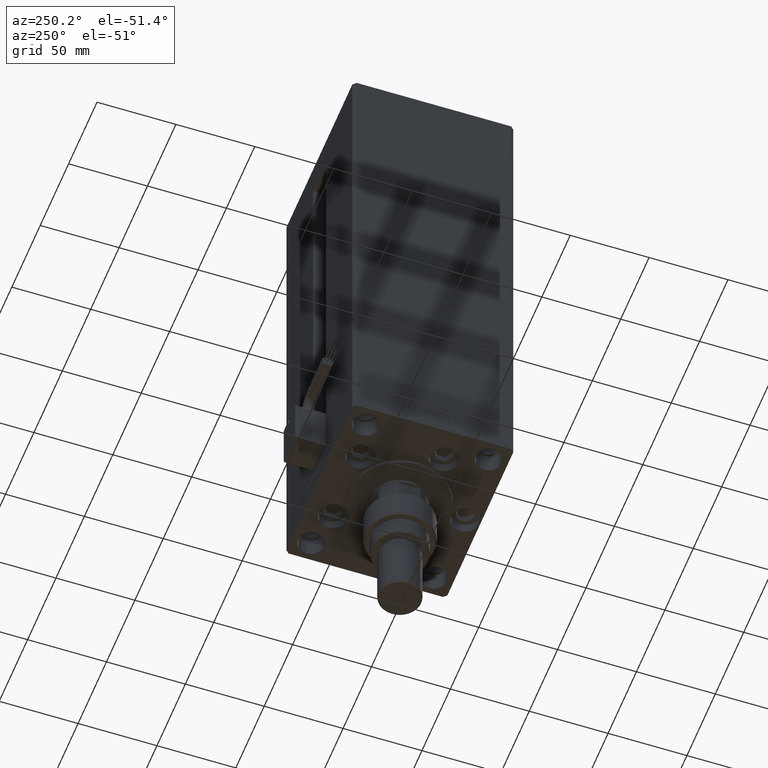
[diagram: clean part render]
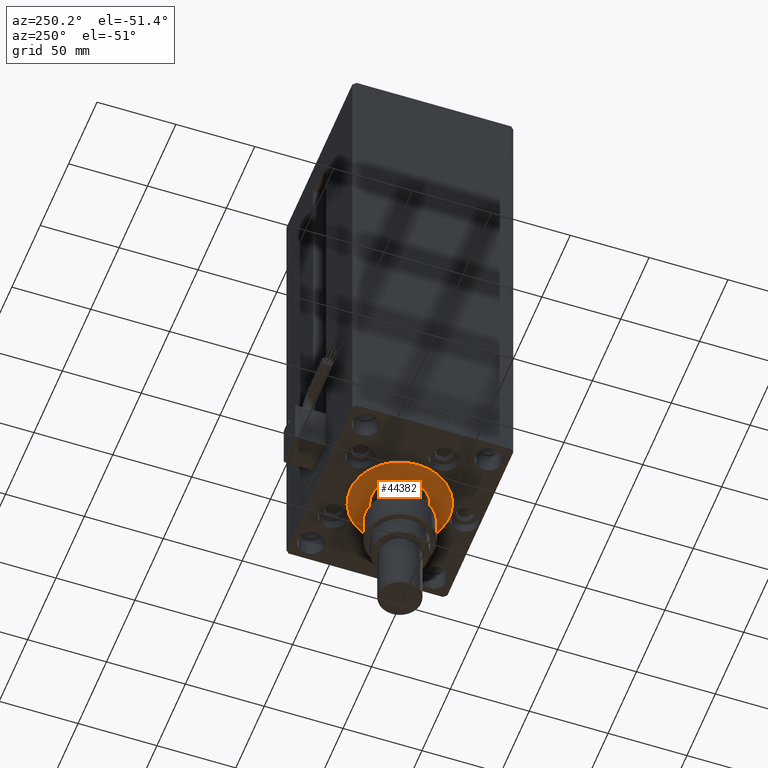
[diagram: same view with one face highlighted and labeled with its STEP entity id]
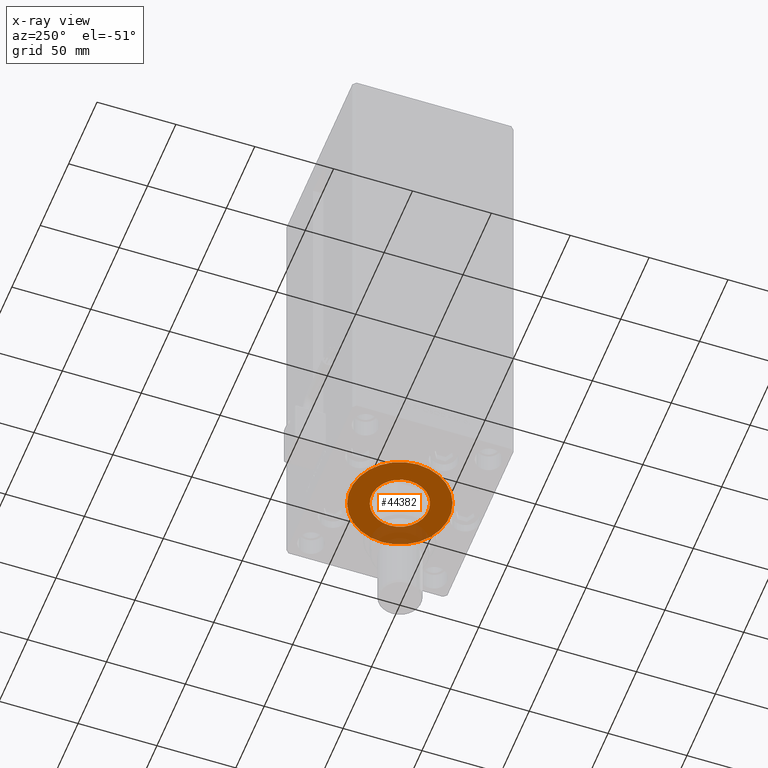
[diagram: x-ray of the same camera — body ghosted, the highlighted face saturated]
A machine part, auxiliary view. The second image highlights one B-rep face of the part: STEP entity #44382.
The next image is the same camera in x-ray: the body ghosted, the highlighted face saturated — about 19% of this face is hidden behind the body in this view.
In plain terms, the highlighted planar face has unit normal (0, 0, -1).
Its self-contained STEP definition (entity closure, byte-faithful):
#1953 = DIRECTION ( 'NONE',  ( 1.000000000000000000, 0.000000000000000000, 0.000000000000000000 ) ) ;
#4747 = DIRECTION ( 'NONE',  ( 0.000000000000000000, 0.000000000000000000, 1.000000000000000000 ) ) ;
#5049 = EDGE_LOOP ( 'NONE', ( #5652, #29481 ) ) ;
#5652 = ORIENTED_EDGE ( 'NONE', *, *, #43945, .T. ) ;
#6372 = EDGE_CURVE ( 'NONE', #17723, #24660, #37971, .T. ) ;
#7086 = DIRECTION ( 'NONE',  ( 0.000000000000000000, 0.000000000000000000, 1.000000000000000000 ) ) ;
#8460 = EDGE_LOOP ( 'NONE', ( #51392, #46887 ) ) ;
#8790 = FACE_BOUND ( 'NONE', #8460, .T. ) ;
#9073 = EDGE_CURVE ( 'NONE', #40836, #44260, #47454, .T. ) ;
#11139 = CIRCLE ( 'NONE', #36996, 31.50000000000000000 ) ;
#11943 = CIRCLE ( 'NONE', #12799, 18.00000000000000000 ) ;
#12691 = DIRECTION ( 'NONE',  ( 0.000000000000000000, 0.000000000000000000, 1.000000000000000000 ) ) ;
#12799 = AXIS2_PLACEMENT_3D ( 'NONE', #31601, #7086, #14110 ) ;
#13492 = DIRECTION ( 'NONE',  ( 0.000000000000000000, 0.000000000000000000, 1.000000000000000000 ) ) ;
#14110 = DIRECTION ( 'NONE',  ( 1.000000000000000000, 0.000000000000000000, 0.000000000000000000 ) ) ;
#14273 = CARTESIAN_POINT ( 'NONE',  ( 31.50000000000000000, -3.081256486593065689E-15, 2.000000000000000000 ) ) ;
#17723 = VERTEX_POINT ( 'NONE', #14273 ) ;
#24660 = VERTEX_POINT ( 'NONE', #29031 ) ;
#24830 = DIRECTION ( 'NONE',  ( 1.000000000000000000, 0.000000000000000000, 0.000000000000000000 ) ) ;
#25091 = DIRECTION ( 'NONE',  ( 1.000000000000000000, 0.000000000000000000, 0.000000000000000000 ) ) ;
#25228 = PLANE ( 'NONE',  #30144 ) ;
#25807 = AXIS2_PLACEMENT_3D ( 'NONE', #37239, #13492, #24830 ) ;
#29031 = CARTESIAN_POINT ( 'NONE',  ( -31.50000000000000000, -6.938893903907228378E-15, 2.000000000000000000 ) ) ;
#29481 = ORIENTED_EDGE ( 'NONE', *, *, #6372, .T. ) ;
#30144 = AXIS2_PLACEMENT_3D ( 'NONE', #33841, #4747, #42451 ) ;
#30240 = AXIS2_PLACEMENT_3D ( 'NONE', #37742, #12691, #25091 ) ;
#31601 = CARTESIAN_POINT ( 'NONE',  ( 0.000000000000000000, -6.938893903907228378E-15, 2.000000000000000000 ) ) ;
#33841 = CARTESIAN_POINT ( 'NONE',  ( 0.000000000000000000, -6.938893903907228378E-15, 2.000000000000000000 ) ) ;
#35765 = CARTESIAN_POINT ( 'NONE',  ( -18.00000000000000000, -4.734529665441992555E-15, 2.000000000000000000 ) ) ;
#36996 = AXIS2_PLACEMENT_3D ( 'NONE', #42903, #38870, #1953 ) ;
#37239 = CARTESIAN_POINT ( 'NONE',  ( 0.000000000000000000, -6.938893903907228378E-15, 2.000000000000000000 ) ) ;
#37410 = EDGE_CURVE ( 'NONE', #44260, #40836, #11943, .T. ) ;
#37742 = CARTESIAN_POINT ( 'NONE',  ( 0.000000000000000000, -6.938893903907228378E-15, 2.000000000000000000 ) ) ;
#37971 = CIRCLE ( 'NONE', #25807, 31.50000000000000000 ) ;
#38789 = CARTESIAN_POINT ( 'NONE',  ( 18.00000000000000000, -6.938893903907228378E-15, 2.000000000000000000 ) ) ;
#38870 = DIRECTION ( 'NONE',  ( 0.000000000000000000, 0.000000000000000000, 1.000000000000000000 ) ) ;
#40836 = VERTEX_POINT ( 'NONE', #38789 ) ;
#42451 = DIRECTION ( 'NONE',  ( 1.000000000000000000, 0.000000000000000000, -0.000000000000000000 ) ) ;
#42903 = CARTESIAN_POINT ( 'NONE',  ( 0.000000000000000000, -6.938893903907228378E-15, 2.000000000000000000 ) ) ;
#43945 = EDGE_CURVE ( 'NONE', #24660, #17723, #11139, .T. ) ;
#44260 = VERTEX_POINT ( 'NONE', #35765 ) ;
#44382 = ADVANCED_FACE ( 'NONE', ( #8790, #46227 ), #25228, .T. ) ;
#46227 = FACE_OUTER_BOUND ( 'NONE', #5049, .T. ) ;
#46887 = ORIENTED_EDGE ( 'NONE', *, *, #37410, .F. ) ;
#47454 = CIRCLE ( 'NONE', #30240, 18.00000000000000000 ) ;
#51392 = ORIENTED_EDGE ( 'NONE', *, *, #9073, .F. ) ;